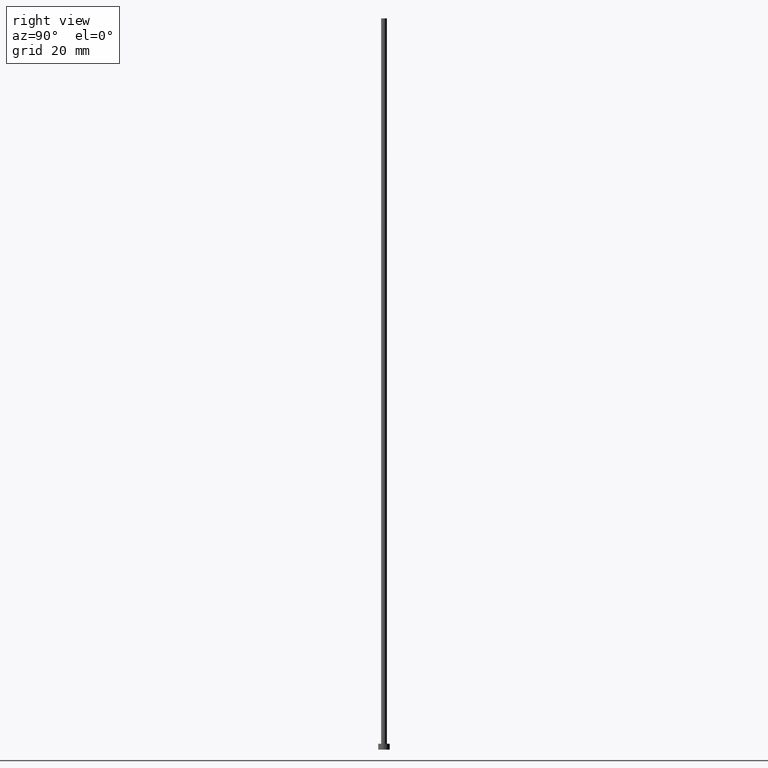
[diagram: clean part render]
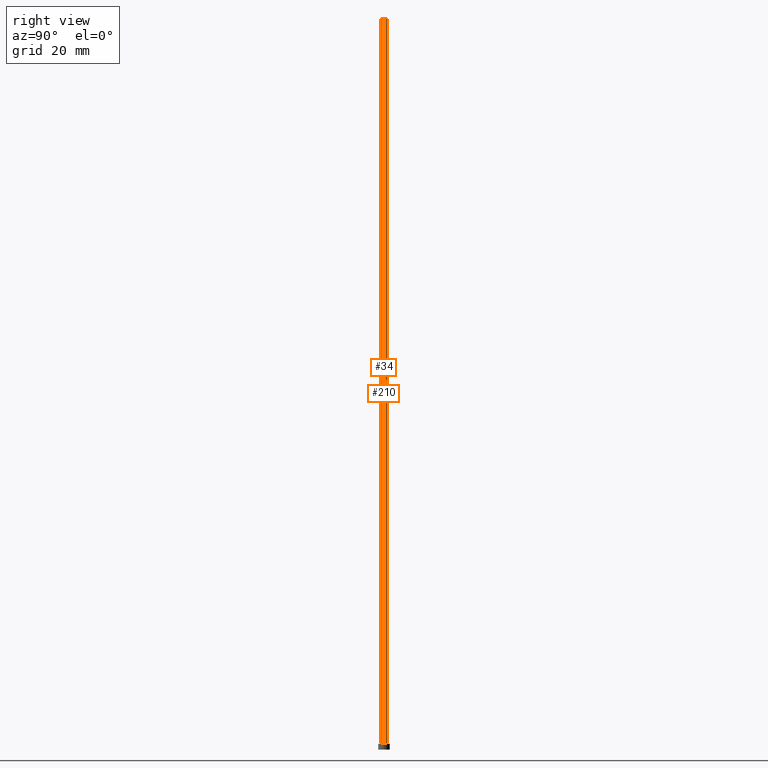
[diagram: same view with one multi-face feature highlighted, each face labeled with its STEP entity id]
A machine part, right view. The highlighted faces form ONE feature: a constant-radius fillet chain: 2 tangent blend faces with common blend radius 1 mm. The faces share edges in the B-rep.
Their STEP definitions:
[1] entity #34 (Cylinder):
#3 = ORIENTED_EDGE ( 'NONE', *, *, #102, .T. ) ;
#8 = CARTESIAN_POINT ( 'NONE',  ( -1.000000000000000000, 0.000000000000000000, 250.0000000000000000 ) ) ;
#31 = DIRECTION ( 'NONE',  ( 0.000000000000000000, 0.000000000000000000, 1.000000000000000000 ) ) ;
#34 = ADVANCED_FACE ( 'NONE', ( #229 ), #112, .T. ) ;
#46 = VERTEX_POINT ( 'NONE', #8 ) ;
#50 = AXIS2_PLACEMENT_3D ( 'NONE', #100, #123, #74 ) ;
#51 = DIRECTION ( 'NONE',  ( -0.000000000000000000, -0.000000000000000000, -1.000000000000000000 ) ) ;
#70 = LINE ( 'NONE', #117, #88 ) ;
#73 = EDGE_CURVE ( 'NONE', #46, #106, #190, .T. ) ;
#74 = DIRECTION ( 'NONE',  ( 1.000000000000000000, 0.000000000000000000, 0.000000000000000000 ) ) ;
#86 = VERTEX_POINT ( 'NONE', #212 ) ;
#88 = VECTOR ( 'NONE', #194, 1000.000000000000000 ) ;
#92 = DIRECTION ( 'NONE',  ( -1.000000000000000000, 0.000000000000000000, 0.000000000000000000 ) ) ;
#93 = LINE ( 'NONE', #245, #230 ) ;
#94 = EDGE_CURVE ( 'NONE', #106, #201, #70, .T. ) ;
#96 = CIRCLE ( 'NONE', #50, 1.000000000000000000 ) ;
#100 = CARTESIAN_POINT ( 'NONE',  ( 0.000000000000000000, 0.000000000000000000, 2.000000000000000000 ) ) ;
#102 = EDGE_CURVE ( 'NONE', #46, #86, #93, .T. ) ;
#106 = VERTEX_POINT ( 'NONE', #174 ) ;
#112 = CYLINDRICAL_SURFACE ( 'NONE', #220, 1.000000000000000000 ) ;
#114 = DIRECTION ( 'NONE',  ( 1.000000000000000000, 0.000000000000000000, 0.000000000000000000 ) ) ;
#117 = CARTESIAN_POINT ( 'NONE',  ( 1.000000000000000000, 1.224646799147353207E-16, 250.0000000000000000 ) ) ;
#123 = DIRECTION ( 'NONE',  ( 0.000000000000000000, 0.000000000000000000, 1.000000000000000000 ) ) ;
#137 = CARTESIAN_POINT ( 'NONE',  ( 1.000000000000000000, 1.224646799147353207E-16, 2.000000000000000000 ) ) ;
#156 = CARTESIAN_POINT ( 'NONE',  ( 0.000000000000000000, 0.000000000000000000, 250.0000000000000000 ) ) ;
#167 = ORIENTED_EDGE ( 'NONE', *, *, #173, .T. ) ;
#173 = EDGE_CURVE ( 'NONE', #86, #201, #96, .T. ) ;
#174 = CARTESIAN_POINT ( 'NONE',  ( 1.000000000000000000, 1.224646799147353207E-16, 250.0000000000000000 ) ) ;
#177 = CARTESIAN_POINT ( 'NONE',  ( 0.000000000000000000, 0.000000000000000000, 250.0000000000000000 ) ) ;
#190 = CIRCLE ( 'NONE', #253, 1.000000000000000000 ) ;
#194 = DIRECTION ( 'NONE',  ( -0.000000000000000000, -0.000000000000000000, -1.000000000000000000 ) ) ;
#201 = VERTEX_POINT ( 'NONE', #137 ) ;
#207 = EDGE_LOOP ( 'NONE', ( #217, #225, #3, #167 ) ) ;
#211 = DIRECTION ( 'NONE',  ( -0.000000000000000000, -0.000000000000000000, -1.000000000000000000 ) ) ;
#212 = CARTESIAN_POINT ( 'NONE',  ( -1.000000000000000000, 0.000000000000000000, 2.000000000000000000 ) ) ;
#217 = ORIENTED_EDGE ( 'NONE', *, *, #94, .F. ) ;
#220 = AXIS2_PLACEMENT_3D ( 'NONE', #177, #211, #92 ) ;
#225 = ORIENTED_EDGE ( 'NONE', *, *, #73, .F. ) ;
#229 = FACE_OUTER_BOUND ( 'NONE', #207, .T. ) ;
#230 = VECTOR ( 'NONE', #51, 1000.000000000000000 ) ;
#245 = CARTESIAN_POINT ( 'NONE',  ( -1.000000000000000000, 0.000000000000000000, 250.0000000000000000 ) ) ;
#253 = AXIS2_PLACEMENT_3D ( 'NONE', #156, #31, #114 ) ;
[2] entity #210 (Cylinder):
#8 = CARTESIAN_POINT ( 'NONE',  ( -1.000000000000000000, 0.000000000000000000, 250.0000000000000000 ) ) ;
#10 = DIRECTION ( 'NONE',  ( 0.000000000000000000, 0.000000000000000000, 1.000000000000000000 ) ) ;
#14 = CYLINDRICAL_SURFACE ( 'NONE', #69, 1.000000000000000000 ) ;
#15 = DIRECTION ( 'NONE',  ( 0.000000000000000000, 0.000000000000000000, 1.000000000000000000 ) ) ;
#38 = AXIS2_PLACEMENT_3D ( 'NONE', #176, #10, #231 ) ;
#46 = VERTEX_POINT ( 'NONE', #8 ) ;
#47 = EDGE_CURVE ( 'NONE', #106, #46, #116, .T. ) ;
#51 = DIRECTION ( 'NONE',  ( -0.000000000000000000, -0.000000000000000000, -1.000000000000000000 ) ) ;
#60 = ORIENTED_EDGE ( 'NONE', *, *, #152, .T. ) ;
#69 = AXIS2_PLACEMENT_3D ( 'NONE', #250, #75, #95 ) ;
#70 = LINE ( 'NONE', #117, #88 ) ;
#75 = DIRECTION ( 'NONE',  ( -0.000000000000000000, -0.000000000000000000, -1.000000000000000000 ) ) ;
#81 = ORIENTED_EDGE ( 'NONE', *, *, #102, .F. ) ;
#86 = VERTEX_POINT ( 'NONE', #212 ) ;
#88 = VECTOR ( 'NONE', #194, 1000.000000000000000 ) ;
#93 = LINE ( 'NONE', #245, #230 ) ;
#94 = EDGE_CURVE ( 'NONE', #106, #201, #70, .T. ) ;
#95 = DIRECTION ( 'NONE',  ( -1.000000000000000000, 0.000000000000000000, 0.000000000000000000 ) ) ;
#97 = CARTESIAN_POINT ( 'NONE',  ( 0.000000000000000000, 0.000000000000000000, 2.000000000000000000 ) ) ;
#102 = EDGE_CURVE ( 'NONE', #46, #86, #93, .T. ) ;
#106 = VERTEX_POINT ( 'NONE', #174 ) ;
#116 = CIRCLE ( 'NONE', #38, 1.000000000000000000 ) ;
#117 = CARTESIAN_POINT ( 'NONE',  ( 1.000000000000000000, 1.224646799147353207E-16, 250.0000000000000000 ) ) ;
#137 = CARTESIAN_POINT ( 'NONE',  ( 1.000000000000000000, 1.224646799147353207E-16, 2.000000000000000000 ) ) ;
#140 = AXIS2_PLACEMENT_3D ( 'NONE', #97, #15, #183 ) ;
#150 = ORIENTED_EDGE ( 'NONE', *, *, #94, .T. ) ;
#152 = EDGE_CURVE ( 'NONE', #201, #86, #246, .T. ) ;
#174 = CARTESIAN_POINT ( 'NONE',  ( 1.000000000000000000, 1.224646799147353207E-16, 250.0000000000000000 ) ) ;
#176 = CARTESIAN_POINT ( 'NONE',  ( 0.000000000000000000, 0.000000000000000000, 250.0000000000000000 ) ) ;
#183 = DIRECTION ( 'NONE',  ( 1.000000000000000000, 0.000000000000000000, 0.000000000000000000 ) ) ;
#189 = ORIENTED_EDGE ( 'NONE', *, *, #47, .F. ) ;
#194 = DIRECTION ( 'NONE',  ( -0.000000000000000000, -0.000000000000000000, -1.000000000000000000 ) ) ;
#201 = VERTEX_POINT ( 'NONE', #137 ) ;
#210 = ADVANCED_FACE ( 'NONE', ( #248 ), #14, .T. ) ;
#212 = CARTESIAN_POINT ( 'NONE',  ( -1.000000000000000000, 0.000000000000000000, 2.000000000000000000 ) ) ;
#218 = EDGE_LOOP ( 'NONE', ( #189, #150, #60, #81 ) ) ;
#230 = VECTOR ( 'NONE', #51, 1000.000000000000000 ) ;
#231 = DIRECTION ( 'NONE',  ( 1.000000000000000000, 0.000000000000000000, 0.000000000000000000 ) ) ;
#245 = CARTESIAN_POINT ( 'NONE',  ( -1.000000000000000000, 0.000000000000000000, 250.0000000000000000 ) ) ;
#246 = CIRCLE ( 'NONE', #140, 1.000000000000000000 ) ;
#248 = FACE_OUTER_BOUND ( 'NONE', #218, .T. ) ;
#250 = CARTESIAN_POINT ( 'NONE',  ( 0.000000000000000000, 0.000000000000000000, 250.0000000000000000 ) ) ;